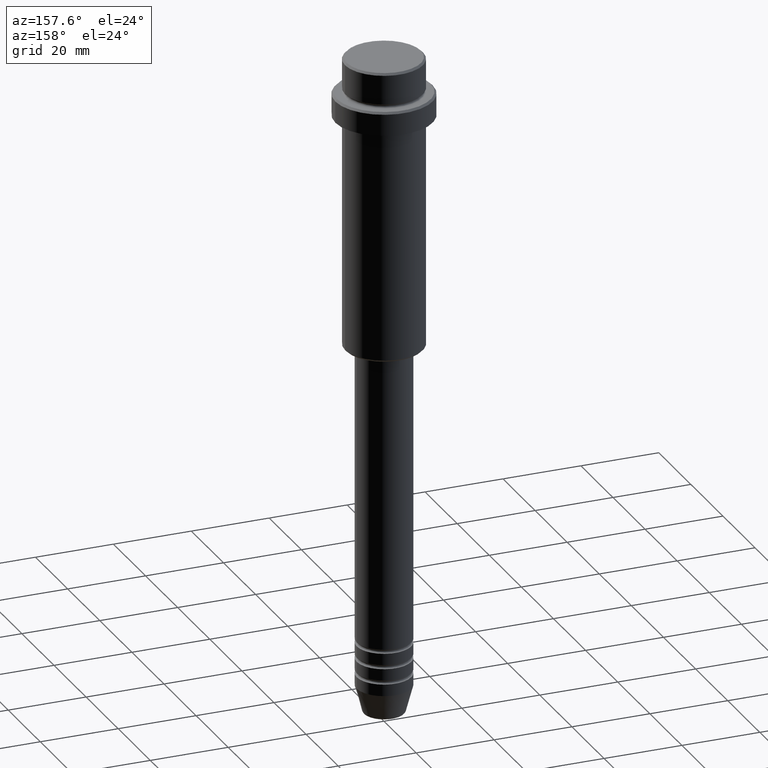
[diagram: clean part render]
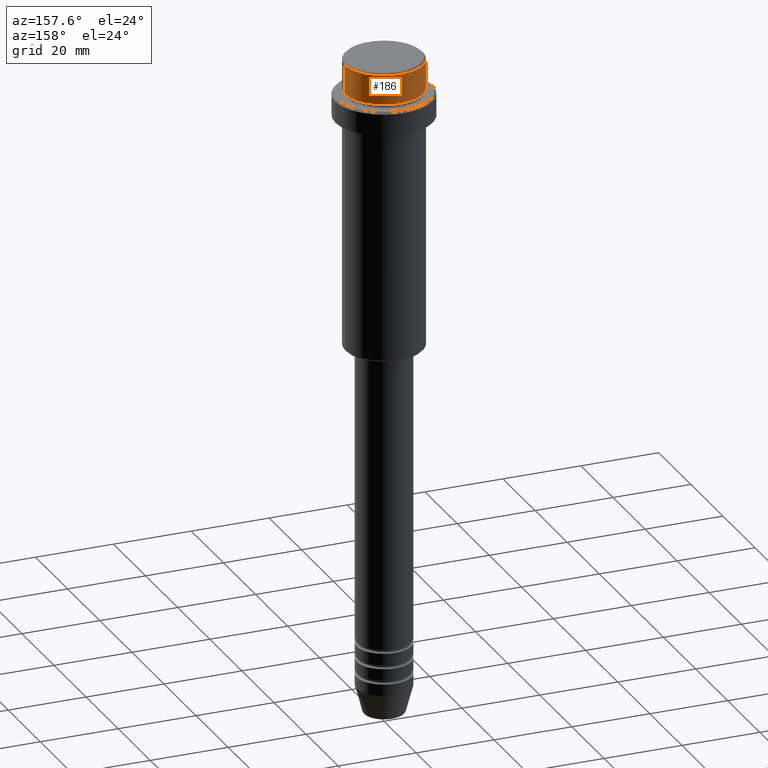
[diagram: same view with one face highlighted and labeled with its STEP entity id]
A machine part, auxiliary view. The second image highlights one B-rep face of the part: STEP entity #186.
In plain terms, the highlighted cylindrical surface (partial cylindrical patch) has radius 10 mm, axis along (-0, -0, 1).
Its self-contained STEP definition (entity closure, byte-faithful):
#36 = CARTESIAN_POINT ( 'NONE',  ( 9.999999999999998224, 0.000000000000000000, -7.999999999999998224 ) ) ;
#102 = LINE ( 'NONE', #845, #509 ) ;
#186 = ADVANCED_FACE ( 'NONE', ( #950 ), #704, .T. ) ;
#223 = DIRECTION ( 'NONE',  ( -0.000000000000000000, -0.000000000000000000, 1.000000000000000000 ) ) ;
#258 = CARTESIAN_POINT ( 'NONE',  ( 9.999999999999998224, 0.000000000000000000, 0.000000000000000000 ) ) ;
#270 = EDGE_LOOP ( 'NONE', ( #975, #1080, #643, #1092 ) ) ;
#373 = VERTEX_POINT ( 'NONE', #877 ) ;
#483 = DIRECTION ( 'NONE',  ( 1.000000000000000000, 0.000000000000000000, 0.000000000000000000 ) ) ;
#503 = DIRECTION ( 'NONE',  ( 1.000000000000000000, 0.000000000000000000, 0.000000000000000000 ) ) ;
#509 = VECTOR ( 'NONE', #223, 1000.000000000000000 ) ;
#545 = EDGE_CURVE ( 'NONE', #373, #1315, #1304, .T. ) ;
#585 = DIRECTION ( 'NONE',  ( 0.000000000000000000, 0.000000000000000000, -1.000000000000000000 ) ) ;
#623 = AXIS2_PLACEMENT_3D ( 'NONE', #904, #585, #483 ) ;
#643 = ORIENTED_EDGE ( 'NONE', *, *, #545, .T. ) ;
#668 = DIRECTION ( 'NONE',  ( -0.000000000000000000, -0.000000000000000000, 1.000000000000000000 ) ) ;
#704 = CYLINDRICAL_SURFACE ( 'NONE', #934, 9.999999999999998224 ) ;
#705 = CARTESIAN_POINT ( 'NONE',  ( 9.999999999999998224, 0.000000000000000000, -0.4999999999999970024 ) ) ;
#762 = AXIS2_PLACEMENT_3D ( 'NONE', #976, #668, #1103 ) ;
#802 = CARTESIAN_POINT ( 'NONE',  ( -9.999999999999998224, 1.224646799147353059E-15, -7.999999999999998224 ) ) ;
#807 = VECTOR ( 'NONE', #1136, 1000.000000000000000 ) ;
#811 = LINE ( 'NONE', #258, #807 ) ;
#816 = EDGE_CURVE ( 'NONE', #1360, #373, #102, .T. ) ;
#820 = DIRECTION ( 'NONE',  ( -0.000000000000000000, -0.000000000000000000, 1.000000000000000000 ) ) ;
#828 = CIRCLE ( 'NONE', #762, 9.999999999999998224 ) ;
#845 = CARTESIAN_POINT ( 'NONE',  ( -9.999999999999998224, 1.224646799147353059E-15, 0.000000000000000000 ) ) ;
#877 = CARTESIAN_POINT ( 'NONE',  ( -9.999999999999998224, 1.224646799147353059E-15, -0.4999999999999970024 ) ) ;
#904 = CARTESIAN_POINT ( 'NONE',  ( 0.000000000000000000, 0.000000000000000000, -0.4999999999999970024 ) ) ;
#934 = AXIS2_PLACEMENT_3D ( 'NONE', #1270, #820, #503 ) ;
#950 = FACE_OUTER_BOUND ( 'NONE', #270, .T. ) ;
#975 = ORIENTED_EDGE ( 'NONE', *, *, #1264, .T. ) ;
#976 = CARTESIAN_POINT ( 'NONE',  ( 0.000000000000000000, 0.000000000000000000, -7.999999999999998224 ) ) ;
#1080 = ORIENTED_EDGE ( 'NONE', *, *, #816, .T. ) ;
#1092 = ORIENTED_EDGE ( 'NONE', *, *, #1325, .F. ) ;
#1103 = DIRECTION ( 'NONE',  ( 1.000000000000000000, 0.000000000000000000, 0.000000000000000000 ) ) ;
#1136 = DIRECTION ( 'NONE',  ( -0.000000000000000000, -0.000000000000000000, 1.000000000000000000 ) ) ;
#1264 = EDGE_CURVE ( 'NONE', #1322, #1360, #828, .T. ) ;
#1270 = CARTESIAN_POINT ( 'NONE',  ( 0.000000000000000000, 0.000000000000000000, 0.000000000000000000 ) ) ;
#1304 = CIRCLE ( 'NONE', #623, 9.999999999999998224 ) ;
#1315 = VERTEX_POINT ( 'NONE', #705 ) ;
#1322 = VERTEX_POINT ( 'NONE', #36 ) ;
#1325 = EDGE_CURVE ( 'NONE', #1322, #1315, #811, .T. ) ;
#1360 = VERTEX_POINT ( 'NONE', #802 ) ;